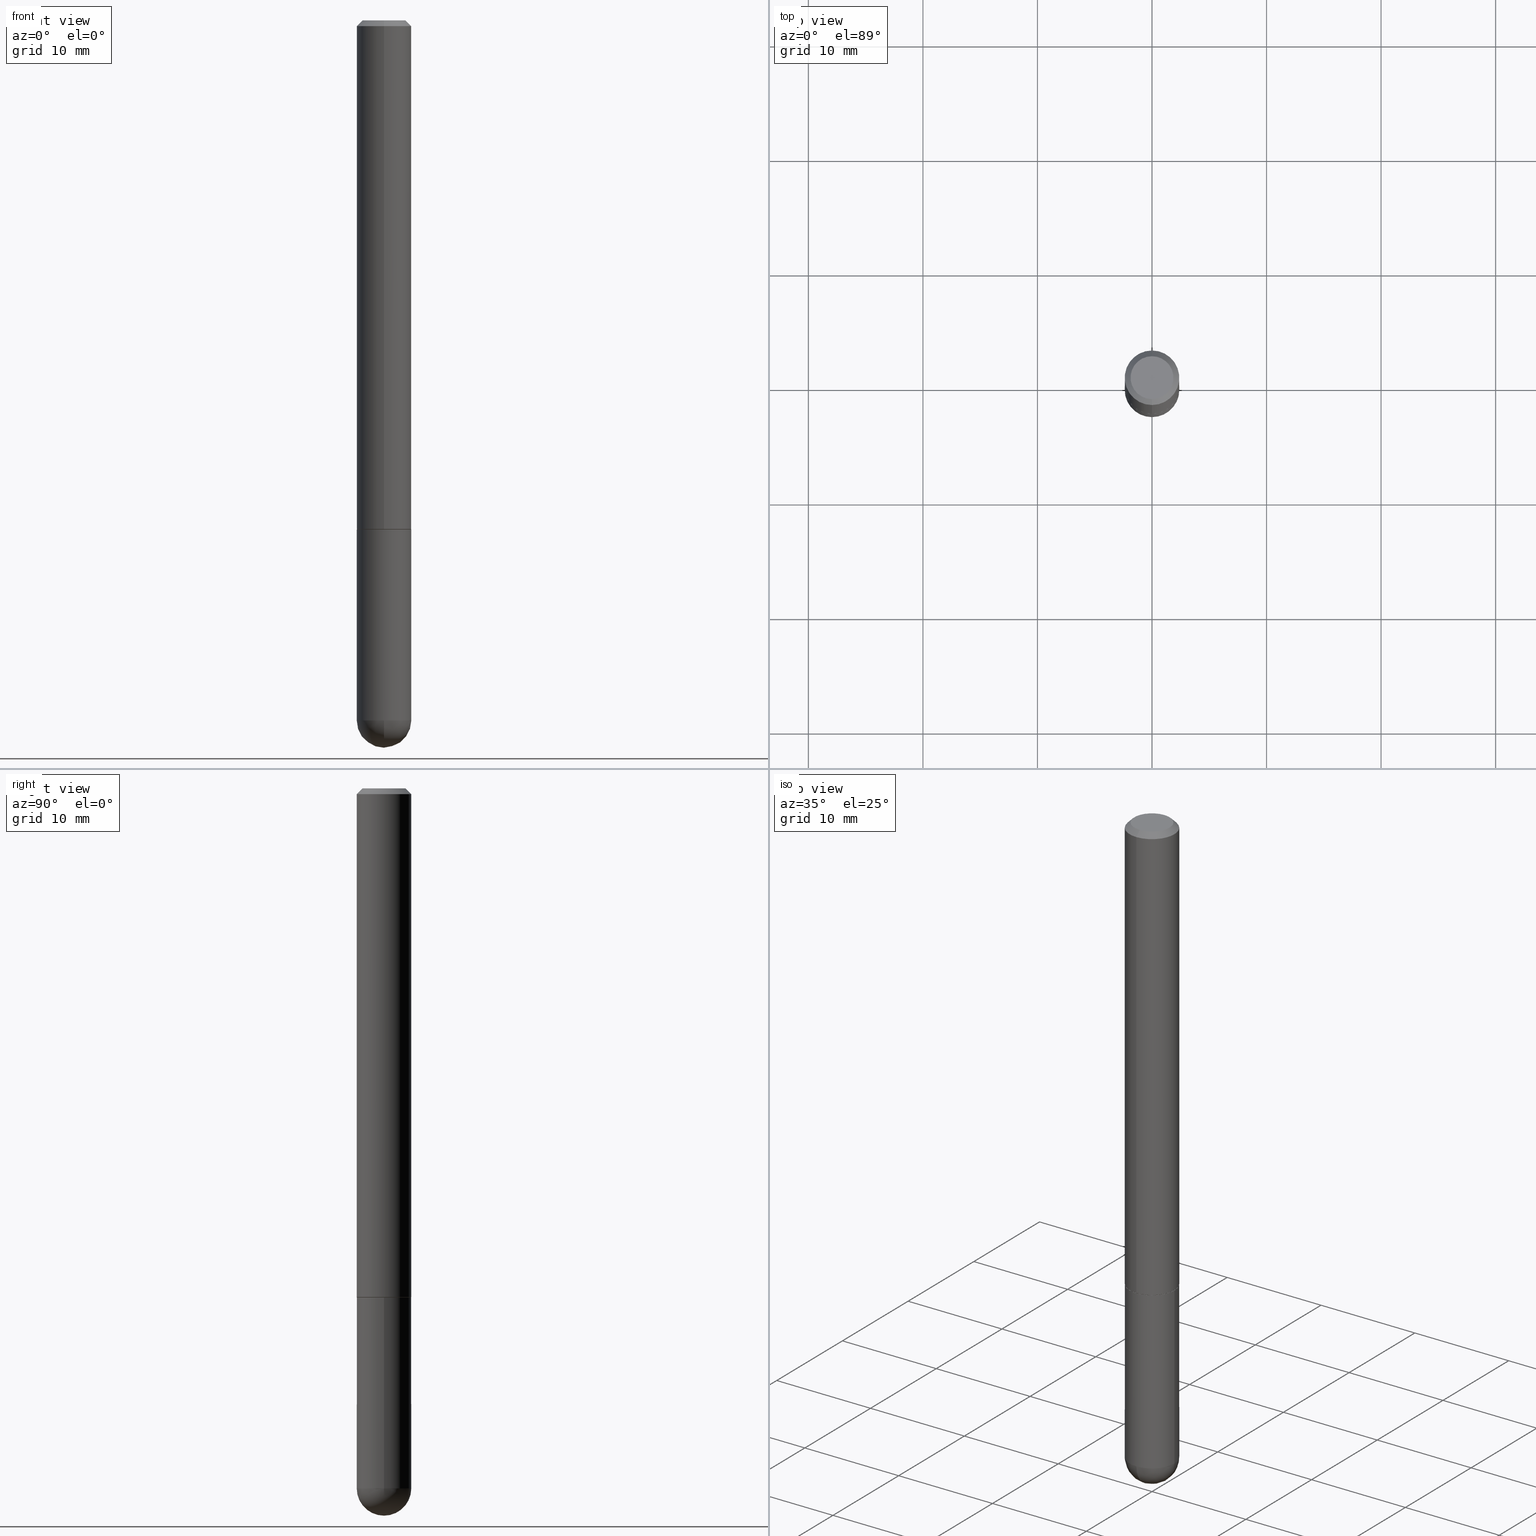
[diagram: canonical four-view strip — front | top / right | iso, engineering-drawing reading convention]
A machine part, canonical four-view strip (front | top / right | iso — engineering-drawing reading convention). The complete STEP part file that produces these views, byte-faithful:
ISO-10303-21;
HEADER;
FILE_DESCRIPTION (( 'STEP AP203' ),
    '1' );
FILE_NAME ('33102.STEP',
    '2024-02-21T17:47:03',
    ( '' ),
    ( '' ),
    'SwSTEP 2.0',
    'SolidWorks 2023',
    '' );
FILE_SCHEMA (( 'CONFIG_CONTROL_DESIGN' ));
ENDSEC;

DATA;
#1 = AXIS2_PLACEMENT_3D ( 'NONE', #64, #156, #408 ) ;
#2 = EDGE_CURVE ( 'NONE', #197, #225, #271, .T. ) ;
#3 = CC_DESIGN_PERSON_AND_ORGANIZATION_ASSIGNMENT ( #19, #141, ( #143 ) ) ;
#4 = CYLINDRICAL_SURFACE ( 'NONE', #395, 0.09375000000000006939 ) ;
#5 = FACE_OUTER_BOUND ( 'NONE', #317, .T. ) ;
#6 = DIRECTION ( 'NONE',  ( 1.000000000000000000, -6.982962677686263555E-15, 0.000000000000000000 ) ) ;
#7 = CARTESIAN_POINT ( 'NONE',  ( 5.553289536969099810E-29, -8.875559339731369515E-15, -2.406250000000000000 ) ) ;
#8 = ORIENTED_EDGE ( 'NONE', *, *, #166, .T. ) ;
#9 = AXIS2_PLACEMENT_3D ( 'NONE', #267, #375, #340 ) ;
#10 = CYLINDRICAL_SURFACE ( 'NONE', #321, 0.09375000000000002776 ) ;
#11 = EDGE_LOOP ( 'NONE', ( #189, #75, #196, #110, #290 ) ) ;
#12 = FACE_OUTER_BOUND ( 'NONE', #16, .T. ) ;
#13 = AXIS2_PLACEMENT_3D ( 'NONE', #186, #236, #369 ) ;
#14 = PRODUCT_DEFINITION_SHAPE ( 'NONE', 'NONE',  #102 ) ;
#15 = PRODUCT_DEFINITION_FORMATION_WITH_SPECIFIED_SOURCE ( 'ANY', '', #143, .NOT_KNOWN. ) ;
#16 = EDGE_LOOP ( 'NONE', ( #232, #394, #356, #293 ) ) ;
#17 = EDGE_CURVE ( 'NONE', #48, #322, #178, .T. ) ;
#18 = DIMENSIONAL_EXPONENTS ( 1.000000000000000000, 0.000000000000000000, 0.000000000000000000, 0.000000000000000000, 0.000000000000000000, 0.000000000000000000, 0.000000000000000000 ) ;
#19 = PERSON_AND_ORGANIZATION ( #284, #292 ) ;
#20 = PERSON_AND_ORGANIZATION_ROLE ( 'creator' ) ;
#21 = AXIS2_PLACEMENT_3D ( 'NONE', #83, #183, #333 ) ;
#22 = APPROVAL_DATE_TIME ( #396, #288 ) ;
#23 = DIRECTION ( 'NONE',  ( -2.433097056190871662E-29, 3.509198388991212762E-15, 1.000000000000000000 ) ) ;
#24 = DIRECTION ( 'NONE',  ( -2.433097056190871662E-29, 3.509198388991212762E-15, 1.000000000000000000 ) ) ;
#25 =( NAMED_UNIT ( * ) SI_UNIT ( $, .STERADIAN. ) SOLID_ANGLE_UNIT ( ) );
#26 = APPROVAL_STATUS ( 'not_yet_approved' ) ;
#27 = CARTESIAN_POINT ( 'NONE',  ( 0.000000000000000000, 0.000000000000000000, 0.000000000000000000 ) ) ;
#28 = CC_DESIGN_SECURITY_CLASSIFICATION ( #170, ( #15 ) ) ;
#29 = ADVANCED_FACE ( 'NONE', ( #115 ), #213, .F. ) ;
#30 = CARTESIAN_POINT ( 'NONE',  ( 0.09374999999999998612, -6.764745094008592175E-15, -1.750000000000000222 ) ) ;
#31 = FACE_OUTER_BOUND ( 'NONE', #42, .T. ) ;
#32 = LINE ( 'NONE', #303, #354 ) ;
#33 = FACE_OUTER_BOUND ( 'NONE', #41, .T. ) ;
#34 = DIRECTION ( 'NONE',  ( -2.433097056190871662E-29, 3.509198388991212762E-15, 1.000000000000000000 ) ) ;
#35 = CC_DESIGN_DATE_AND_TIME_ASSIGNMENT ( #332, #304, ( #170 ) ) ;
#36 = APPROVAL_PERSON_ORGANIZATION ( #56, #288, #62 ) ;
#37 = CARTESIAN_POINT ( 'NONE',  ( -5.745667073133644707E-16, -0.07374999999999978795, 3.753598508692322501E-16 ) ) ;
#38 = DIRECTION ( 'NONE',  ( -2.433097056190871662E-29, 3.509198388991212762E-15, 1.000000000000000000 ) ) ;
#39 = ORIENTED_EDGE ( 'NONE', *, *, #76, .F. ) ;
#40 = FACE_OUTER_BOUND ( 'NONE', #229, .T. ) ;
#41 = EDGE_LOOP ( 'NONE', ( #216, #368, #330, #139 ) ) ;
#42 = EDGE_LOOP ( 'NONE', ( #136, #8 ) ) ;
#43 = EDGE_CURVE ( 'NONE', #289, #254, #205, .T. ) ;
#44 = CLOSED_SHELL ( 'NONE', ( #104, #318, #331, #305, #249, #171, #46, #209 ) ) ;
#45 = AXIS2_PLACEMENT_3D ( 'NONE', #370, #177, #346 ) ;
#46 = ADVANCED_FACE ( 'NONE', ( #377 ), #67, .F. ) ;
#47 = EDGE_LOOP ( 'NONE', ( #227, #124 ) ) ;
#48 = VERTEX_POINT ( 'NONE', #200 ) ;
#49 = LOCAL_TIME ( 12, 47, 3.000000000000000000, #242 ) ;
#50 = ORIENTED_EDGE ( 'NONE', *, *, #43, .T. ) ;
#51 = CALENDAR_DATE ( 2024, 21, 2 ) ;
#52 = CYLINDRICAL_SURFACE ( 'NONE', #347, 0.09375000000000002776 ) ;
#53 = AXIS2_PLACEMENT_3D ( 'NONE', #310, #90, #269 ) ;
#54 = CARTESIAN_POINT ( 'NONE',  ( 5.884409314882984936E-29, -8.401376971591317641E-15, -2.406249999999999556 ) ) ;
#55 = AXIS2_PLACEMENT_3D ( 'NONE', #70, #163, #128 ) ;
#56 = PERSON_AND_ORGANIZATION ( #284, #292 ) ;
#57 =( CONVERSION_BASED_UNIT ( 'INCH', #306 ) LENGTH_UNIT ( ) NAMED_UNIT ( #18 ) );
#58 = CALENDAR_DATE ( 2024, 21, 2 ) ;
#59 = CARTESIAN_POINT ( 'NONE',  ( 0.000000000000000000, 0.000000000000000000, 0.000000000000000000 ) ) ;
#60 = FACE_OUTER_BOUND ( 'NONE', #388, .T. ) ;
#61 = EDGE_CURVE ( 'NONE', #48, #360, #403, .T. ) ;
#62 = APPROVAL_ROLE ( '' ) ;
#63 = SHAPE_DEFINITION_REPRESENTATION ( #14, #204 ) ;
#64 = CARTESIAN_POINT ( 'NONE',  ( 4.279570410823989044E-29, -6.110092342975505460E-15, -1.750000000000000222 ) ) ;
#65 = CARTESIAN_POINT ( 'NONE',  ( 4.255486751277835157E-29, -6.137587982345631334E-15, -1.749000000000000110 ) ) ;
#66 = VECTOR ( 'NONE', #285, 39.37007874015748143 ) ;
#67 = PLANE ( 'NONE',  #105 ) ;
#68 = DIRECTION ( 'NONE',  ( 1.000000000000000000, -6.982962677686265922E-15, 4.883557194083112340E-29 ) ) ;
#69 = ORIENTED_EDGE ( 'NONE', *, *, #101, .F. ) ;
#70 = CARTESIAN_POINT ( 'NONE',  ( 4.866194112381761121E-31, -7.018396777982450767E-17, -0.02000000000000007327 ) ) ;
#71 = AXIS2_PLACEMENT_3D ( 'NONE', #54, #118, #299 ) ;
#72 = AXIS2_PLACEMENT_3D ( 'NONE', #349, #38, #164 ) ;
#73 = DIRECTION ( 'NONE',  ( -2.433097056190871382E-29, 3.509198388991212762E-15, 1.000000000000000000 ) ) ;
#74 = ORIENTED_EDGE ( 'NONE', *, *, #43, .F. ) ;
#75 = ORIENTED_EDGE ( 'NONE', *, *, #111, .T. ) ;
#76 = EDGE_CURVE ( 'NONE', #283, #254, #393, .T. ) ;
#77 = CC_DESIGN_PERSON_AND_ORGANIZATION_ASSIGNMENT ( #371, #179, ( #170 ) ) ;
#78 = ORIENTED_EDGE ( 'NONE', *, *, #250, .F. ) ;
#79 = FACE_OUTER_BOUND ( 'NONE', #264, .T. ) ;
#80 = ORIENTED_EDGE ( 'NONE', *, *, #257, .T. ) ;
#81 = APPROVAL ( #237, 'UNSPECIFIED' ) ;
#82 = VERTEX_POINT ( 'NONE', #402 ) ;
#83 = CARTESIAN_POINT ( 'NONE',  ( 4.257919848334025689E-29, -6.141097180734623615E-15, -1.750000000000000222 ) ) ;
#84 = EDGE_CURVE ( 'NONE', #254, #283, #161, .T. ) ;
#85 = CARTESIAN_POINT ( 'NONE',  ( 5.786560829529485345E-29, -9.197145183376910845E-15, -2.500000000000000000 ) ) ;
#86 = DIRECTION ( 'NONE',  ( 0.000000000000000000, 0.000000000000000000, 1.000000000000000000 ) ) ;
#87 = CALENDAR_DATE ( 2024, 21, 2 ) ;
#88 = CARTESIAN_POINT ( 'NONE',  ( 4.257919848334025689E-29, -6.141097180734623615E-15, -1.750000000000000222 ) ) ;
#89 = CARTESIAN_POINT ( 'NONE',  ( 4.257919848334025689E-29, -6.141097180734623615E-15, -1.750000000000000222 ) ) ;
#90 = DIRECTION ( 'NONE',  ( -2.445468806185136597E-29, 3.491481338843145583E-15, 1.000000000000000000 ) ) ;
#91 = DIRECTION ( 'NONE',  ( 5.024295867788404755E-15, 0.7071067811865981989, 0.7071067811864968355 ) ) ;
#92 = VECTOR ( 'NONE', #73, 39.37007874015748143 ) ;
#93 = ORIENTED_EDGE ( 'NONE', *, *, #199, .T. ) ;
#94 = MANIFOLD_SOLID_BREP ( 'Body-Move/Copy2[2]', #44 ) ;
#95 = CARTESIAN_POINT ( 'NONE',  ( -6.546527510330464833E-16, -0.09375000000000635603, -1.748999999999999888 ) ) ;
#96 = MANIFOLD_SOLID_BREP ( 'Body-Move/Copy2[1]', #365 ) ;
#97 = ORIENTED_EDGE ( 'NONE', *, *, #84, .T. ) ;
#98 = AXIS2_PLACEMENT_3D ( 'NONE', #274, #270, #345 ) ;
#99 = VECTOR ( 'NONE', #176, 39.37007874015748143 ) ;
#100 = CONICAL_SURFACE ( 'NONE', #55, 0.09374999999999991673, 0.7853981633974468357 ) ;
#101 = EDGE_CURVE ( 'NONE', #134, #362, #327, .T. ) ;
#102 = PRODUCT_DEFINITION ( 'UNKNOWN', '', #15, #358 ) ;
#103 = ORIENTED_EDGE ( 'NONE', *, *, #302, .F. ) ;
#104 = ADVANCED_FACE ( 'NONE', ( #341 ), #238, .T. ) ;
#105 = AXIS2_PLACEMENT_3D ( 'NONE', #89, #157, #406 ) ;
#106 = VECTOR ( 'NONE', #91, 39.37007874015748143 ) ;
#107 = CC_DESIGN_PERSON_AND_ORGANIZATION_ASSIGNMENT ( #116, #121, ( #102 ) ) ;
#108 = ORIENTED_EDGE ( 'NONE', *, *, #144, .T. ) ;
#109 = EDGE_LOOP ( 'NONE', ( #168, #130 ) ) ;
#110 = ORIENTED_EDGE ( 'NONE', *, *, #185, .T. ) ;
#111 = EDGE_CURVE ( 'NONE', #223, #362, #334, .T. ) ;
#112 = ORIENTED_EDGE ( 'NONE', *, *, #364, .T. ) ;
#113 = DIRECTION ( 'NONE',  ( -1.000000000000000000, 6.982962677686265922E-15, -4.876176775795935793E-29 ) ) ;
#114 = PERSON_AND_ORGANIZATION ( #284, #292 ) ;
#115 = FACE_OUTER_BOUND ( 'NONE', #47, .T. ) ;
#116 = PERSON_AND_ORGANIZATION ( #284, #292 ) ;
#117 = CIRCLE ( 'NONE', #246, 0.09375000000000029143 ) ;
#118 = DIRECTION ( 'NONE',  ( -2.445468806185136597E-29, 3.491481338843145583E-15, 1.000000000000000000 ) ) ;
#119 = CIRCLE ( 'NONE', #231, 0.09375000000000005551 ) ;
#120 = MECHANICAL_CONTEXT ( 'NONE', #357, 'mechanical' ) ;
#121 = PERSON_AND_ORGANIZATION_ROLE ( 'creator' ) ;
#122 = DIRECTION ( 'NONE',  ( 2.433097056190871662E-29, -3.509198388991212762E-15, -1.000000000000000000 ) ) ;
#123 = CARTESIAN_POINT ( 'NONE',  ( 4.279570410823989044E-29, -6.110092342975505460E-15, -1.750000000000000222 ) ) ;
#124 = ORIENTED_EDGE ( 'NONE', *, *, #383, .T. ) ;
#125 = CARTESIAN_POINT ( 'NONE',  ( 5.884409314882984936E-29, -8.401376971591317641E-15, -2.406249999999999556 ) ) ;
#126 = DIRECTION ( 'NONE',  ( -1.000000000000000000, 6.982962677686265133E-15, -4.883557194083112901E-29 ) ) ;
#127 = CIRCLE ( 'NONE', #262, 0.09375000000000005551 ) ;
#128 = DIRECTION ( 'NONE',  ( 6.982962677686266711E-15, 1.000000000000000000, -3.505871591869140854E-15 ) ) ;
#129 = CARTESIAN_POINT ( 'NONE',  ( -2.835932032611605891E-45, 4.090197756315282749E-31, 1.165564696811310667E-16 ) ) ;
#130 = ORIENTED_EDGE ( 'NONE', *, *, #323, .F. ) ;
#131 = CARTESIAN_POINT ( 'NONE',  ( -6.431716872910799993E-16, -0.09374999999999998612, -0.01999999999999974368 ) ) ;
#132 = CARTESIAN_POINT ( 'NONE',  ( 5.884409314882984936E-29, -8.401376971591317641E-15, -2.406249999999999556 ) ) ;
#133 = CARTESIAN_POINT ( 'NONE',  ( 4.257919848334025689E-29, -6.141097180734623615E-15, -1.750000000000000222 ) ) ;
#134 = VERTEX_POINT ( 'NONE', #85 ) ;
#135 = VECTOR ( 'NONE', #278, 39.37007874015748143 ) ;
#136 = ORIENTED_EDGE ( 'NONE', *, *, #61, .T. ) ;
#137 = ADVANCED_FACE ( 'NONE', ( #60 ), #181, .T. ) ;
#138 = CARTESIAN_POINT ( 'NONE',  ( -0.09374999999999998612, -6.589600842508317626E-15, -1.750000000000000222 ) ) ;
#139 = ORIENTED_EDGE ( 'NONE', *, *, #17, .F. ) ;
#140 = CIRCLE ( 'NONE', #1, 0.09374999999999998612 ) ;
#141 = PERSON_AND_ORGANIZATION_ROLE ( 'design_owner' ) ;
#142 = ORIENTED_EDGE ( 'NONE', *, *, #2, .T. ) ;
#143 = PRODUCT ( '33102', '33102', '', ( #120 ) ) ;
#144 = EDGE_CURVE ( 'NONE', #134, #225, #117, .T. ) ;
#145 = CIRCLE ( 'NONE', #279, 0.09275000000000002687 ) ;
#146 = APPROVAL_STATUS ( 'not_yet_approved' ) ;
#147 = APPROVAL_ROLE ( '' ) ;
#148 =( NAMED_UNIT ( * ) PLANE_ANGLE_UNIT ( ) SI_UNIT ( $, .RADIAN. ) );
#149 = CC_DESIGN_DATE_AND_TIME_ASSIGNMENT ( #235, #202, ( #102 ) ) ;
#150 = CARTESIAN_POINT ( 'NONE',  ( -2.835932032611605891E-45, 4.090197756315282749E-31, 1.165564696811310667E-16 ) ) ;
#151 = APPROVAL_ROLE ( '' ) ;
#152 = AXIS2_PLACEMENT_3D ( 'NONE', #129, #34, #184 ) ;
#153 = DIRECTION ( 'NONE',  ( 1.000000000000000000, -6.982962677686265922E-15, 4.876176775795935793E-29 ) ) ;
#154 = CARTESIAN_POINT ( 'NONE',  ( 6.546527510331302012E-16, 0.09374999999999387990, -1.750000000000000444 ) ) ;
#155 = CIRCLE ( 'NONE', #374, 0.09374999999999991673 ) ;
#156 = DIRECTION ( 'NONE',  ( -2.445468806185136597E-29, 3.491481338843145583E-15, 1.000000000000000000 ) ) ;
#157 = DIRECTION ( 'NONE',  ( -2.433097056190871382E-29, 3.509198388991212762E-15, 1.000000000000000000 ) ) ;
#158 = DIRECTION ( 'NONE',  ( 2.433097056190871382E-29, -3.509198388991212762E-15, -1.000000000000000000 ) ) ;
#159 = DIRECTION ( 'NONE',  ( -6.982962677686265133E-15, -1.000000000000000000, 2.945388672414299103E-15 ) ) ;
#160 = CARTESIAN_POINT ( 'NONE',  ( 0.09375000000000002776, -6.546527510330876027E-16, 4.571415727308691207E-30 ) ) ;
#161 = CIRCLE ( 'NONE', #211, 0.09375000000000023592 ) ;
#162 =( GEOMETRIC_REPRESENTATION_CONTEXT ( 3 ) GLOBAL_UNCERTAINTY_ASSIGNED_CONTEXT ( ( #259 ) ) GLOBAL_UNIT_ASSIGNED_CONTEXT ( ( #57, #148, #25 ) ) REPRESENTATION_CONTEXT ( 'NONE', 'WORKASPACE' ) );
#163 = DIRECTION ( 'NONE',  ( 2.433097056190871662E-29, -3.509198388991212762E-15, -1.000000000000000000 ) ) ;
#164 = DIRECTION ( 'NONE',  ( -6.982962677686266711E-15, -1.000000000000000000, 3.509198388991212762E-15 ) ) ;
#165 = EDGE_LOOP ( 'NONE', ( #97, #194, #385, #319 ) ) ;
#166 = EDGE_CURVE ( 'NONE', #360, #48, #220, .T. ) ;
#167 = ORIENTED_EDGE ( 'NONE', *, *, #382, .F. ) ;
#168 = ORIENTED_EDGE ( 'NONE', *, *, #364, .F. ) ;
#169 = AXIS2_PLACEMENT_3D ( 'NONE', #133, #187, #380 ) ;
#170 = SECURITY_CLASSIFICATION ( '', '', #294 ) ;
#171 = ADVANCED_FACE ( 'NONE', ( #40 ), #192, .T. ) ;
#172 = ORIENTED_EDGE ( 'NONE', *, *, #185, .F. ) ;
#173 = COORDINATED_UNIVERSAL_TIME_OFFSET ( 5, 0, .BEHIND. ) ;
#174 = AXIS2_PLACEMENT_3D ( 'NONE', #188, #312, #159 ) ;
#175 = LINE ( 'NONE', #298, #66 ) ;
#176 = DIRECTION ( 'NONE',  ( -4.937700262164884886E-15, -0.7071067811865933139, 0.7071067811865017205 ) ) ;
#177 = DIRECTION ( 'NONE',  ( -2.433097056190871662E-29, 3.509198388991212762E-15, 1.000000000000000000 ) ) ;
#178 = LINE ( 'NONE', #401, #230 ) ;
#179 = PERSON_AND_ORGANIZATION_ROLE ( 'classification_officer' ) ;
#180 = CALENDAR_DATE ( 2024, 21, 2 ) ;
#181 = SPHERICAL_SURFACE ( 'NONE', #320, 0.09375000000000029143 ) ;
#182 = FACE_OUTER_BOUND ( 'NONE', #363, .T. ) ;
#183 = DIRECTION ( 'NONE',  ( -2.433097056190871662E-29, 3.509198388991212762E-15, 1.000000000000000000 ) ) ;
#184 = DIRECTION ( 'NONE',  ( -6.982962677686266711E-15, -1.000000000000000000, 3.509198388991212762E-15 ) ) ;
#185 = EDGE_CURVE ( 'NONE', #197, #352, #215, .T. ) ;
#186 = CARTESIAN_POINT ( 'NONE',  ( 5.553289536969099810E-29, -8.875559339731369515E-15, -2.406250000000000000 ) ) ;
#187 = DIRECTION ( 'NONE',  ( -2.433097056190871662E-29, 3.509198388991212762E-15, 1.000000000000000000 ) ) ;
#188 = CARTESIAN_POINT ( 'NONE',  ( 4.257919848334025689E-29, -6.141097180734623615E-15, -1.750000000000000222 ) ) ;
#189 = ORIENTED_EDGE ( 'NONE', *, *, #392, .F. ) ;
#190 = CARTESIAN_POINT ( 'NONE',  ( -6.431716872910799993E-16, -0.09374999999999998612, -0.01999999999999974368 ) ) ;
#191 = AXIS2_PLACEMENT_3D ( 'NONE', #154, #272, #113 ) ;
#192 = CONICAL_SURFACE ( 'NONE', #169, 0.09275000000000002687, 0.7853981633975165577 ) ;
#193 = ORIENTED_EDGE ( 'NONE', *, *, #399, .T. ) ;
#194 = ORIENTED_EDGE ( 'NONE', *, *, #302, .T. ) ;
#195 = AXIS2_PLACEMENT_3D ( 'NONE', #376, #86, #206 ) ;
#196 = ORIENTED_EDGE ( 'NONE', *, *, #250, .T. ) ;
#197 = VERTEX_POINT ( 'NONE', #316 ) ;
#198 = APPROVAL_PERSON_ORGANIZATION ( #296, #81, #147 ) ;
#199 = EDGE_CURVE ( 'NONE', #82, #283, #311, .T. ) ;
#200 = CARTESIAN_POINT ( 'NONE',  ( 5.848231242562241073E-16, 0.07374999999999978795, -1.422469115069701659E-16 ) ) ;
#201 =( LENGTH_UNIT ( ) NAMED_UNIT ( * ) SI_UNIT ( $, .METRE. ) );
#202 = DATE_TIME_ROLE ( 'creation_date' ) ;
#203 = PERSON_AND_ORGANIZATION_ROLE ( 'design_supplier' ) ;
#204 = ADVANCED_BREP_SHAPE_REPRESENTATION ( '33102', ( #96, #94, #195 ), #162 ) ;
#205 = LINE ( 'NONE', #301, #99 ) ;
#206 = DIRECTION ( 'NONE',  ( 1.000000000000000000, 0.000000000000000000, 0.000000000000000000 ) ) ;
#207 = DATE_AND_TIME ( #180, #49 ) ;
#208 = DIRECTION ( 'NONE',  ( -2.433097056190871662E-29, 3.509198388991212762E-15, 1.000000000000000000 ) ) ;
#209 = ADVANCED_FACE ( 'NONE', ( #31 ), #280, .F. ) ;
#210 = DIRECTION ( 'NONE',  ( -2.445468806185136877E-29, 3.491481338843145188E-15, 1.000000000000000000 ) ) ;
#211 = AXIS2_PLACEMENT_3D ( 'NONE', #65, #348, #234 ) ;
#212 = CIRCLE ( 'NONE', #45, 0.09374999999999991673 ) ;
#213 = PLANE ( 'NONE',  #191 ) ;
#214 = CYLINDRICAL_SURFACE ( 'NONE', #72, 0.09375000000000006939 ) ;
#215 = LINE ( 'NONE', #160, #297 ) ;
#216 = ORIENTED_EDGE ( 'NONE', *, *, #166, .F. ) ;
#217 = CARTESIAN_POINT ( 'NONE',  ( -0.09375000000000005551, -6.589600842508317626E-15, -2.406249999999999556 ) ) ;
#218 = FACE_OUTER_BOUND ( 'NONE', #165, .T. ) ;
#219 = LINE ( 'NONE', #355, #92 ) ;
#220 = CIRCLE ( 'NONE', #152, 0.07374999999999978795 ) ;
#221 = APPROVAL_PERSON_ORGANIZATION ( #307, #410, #151 ) ;
#222 = ORIENTED_EDGE ( 'NONE', *, *, #76, .T. ) ;
#223 = VERTEX_POINT ( 'NONE', #217 ) ;
#224 = CONICAL_SURFACE ( 'NONE', #315, 0.09374999999999991673, 0.7853981633974468357 ) ;
#225 = VERTEX_POINT ( 'NONE', #252 ) ;
#226 = CARTESIAN_POINT ( 'NONE',  ( 6.661338147751165054E-16, 0.09374999999999410194, -1.749000000000000332 ) ) ;
#227 = ORIENTED_EDGE ( 'NONE', *, *, #382, .T. ) ;
#228 = EDGE_CURVE ( 'NONE', #225, #223, #119, .T. ) ;
#229 = EDGE_LOOP ( 'NONE', ( #286, #260, #50, #39 ) ) ;
#230 = VECTOR ( 'NONE', #398, 39.37007874015748143 ) ;
#231 = AXIS2_PLACEMENT_3D ( 'NONE', #125, #381, #353 ) ;
#232 = ORIENTED_EDGE ( 'NONE', *, *, #144, .F. ) ;
#233 = DIRECTION ( 'NONE',  ( -2.445468806185136597E-29, 3.491481338843145583E-15, 1.000000000000000000 ) ) ;
#234 = DIRECTION ( 'NONE',  ( -6.982962677686265922E-15, -1.000000000000000000, 2.913971193241873272E-15 ) ) ;
#235 = DATE_AND_TIME ( #51, #367 ) ;
#236 = DIRECTION ( 'NONE',  ( -1.000000000000000000, 7.105427357601001070E-15, -4.926315508542082329E-29 ) ) ;
#237 = APPROVAL_STATUS ( 'not_yet_approved' ) ;
#238 = CONICAL_SURFACE ( 'NONE', #21, 0.09275000000000002687, 0.7853981633975165577 ) ;
#239 = CC_DESIGN_APPROVAL ( #81, ( #15 ) ) ;
#240 = SPHERICAL_SURFACE ( 'NONE', #9, 0.09375000000000029143 ) ;
#241 = APPLICATION_PROTOCOL_DEFINITION ( 'international standard', 'config_control_design', 1994, #357 ) ;
#242 = COORDINATED_UNIVERSAL_TIME_OFFSET ( 5, 0, .BEHIND. ) ;
#243 = DIRECTION ( 'NONE',  ( 6.982962677686266711E-15, 1.000000000000000000, -3.505871591869140854E-15 ) ) ;
#244 = DIRECTION ( 'NONE',  ( -2.445468806185136597E-29, 3.491481338843145583E-15, 1.000000000000000000 ) ) ;
#245 = CARTESIAN_POINT ( 'NONE',  ( 4.866194112381761121E-31, -7.018396777982450767E-17, -0.02000000000000007327 ) ) ;
#246 = AXIS2_PLACEMENT_3D ( 'NONE', #7, #68, #248 ) ;
#247 = LOCAL_TIME ( 12, 47, 3.000000000000000000, #372 ) ;
#248 = DIRECTION ( 'NONE',  ( 6.982962677686265922E-15, 1.000000000000000000, 0.000000000000000000 ) ) ;
#249 = ADVANCED_FACE ( 'NONE', ( #5 ), #214, .T. ) ;
#250 = EDGE_CURVE ( 'NONE', #362, #197, #127, .T. ) ;
#251 = CARTESIAN_POINT ( 'NONE',  ( 4.866194112381761121E-31, -7.018396777982450767E-17, -0.02000000000000007327 ) ) ;
#252 = CARTESIAN_POINT ( 'NONE',  ( 6.546527510331458798E-16, 0.09374999999999153455, -2.406250000000000000 ) ) ;
#253 = DIRECTION ( 'NONE',  ( -2.445468806185136597E-29, 3.491481338843145583E-15, 1.000000000000000000 ) ) ;
#254 = VERTEX_POINT ( 'NONE', #95 ) ;
#255 = AXIS2_PLACEMENT_3D ( 'NONE', #150, #24, #378 ) ;
#256 = ORIENTED_EDGE ( 'NONE', *, *, #228, .T. ) ;
#257 = EDGE_CURVE ( 'NONE', #254, #324, #219, .T. ) ;
#258 = EDGE_LOOP ( 'NONE', ( #112, #93, #261, #74 ) ) ;
#259 = UNCERTAINTY_MEASURE_WITH_UNIT (LENGTH_MEASURE( 1.000000000000000082E-05 ), #57, 'distance_accuracy_value', 'NONE');
#260 = ORIENTED_EDGE ( 'NONE', *, *, #323, .T. ) ;
#261 = ORIENTED_EDGE ( 'NONE', *, *, #84, .F. ) ;
#262 = AXIS2_PLACEMENT_3D ( 'NONE', #132, #253, #384 ) ;
#263 = VERTEX_POINT ( 'NONE', #138 ) ;
#264 = EDGE_LOOP ( 'NONE', ( #256, #359, #167, #172, #142 ) ) ;
#265 = APPLICATION_PROTOCOL_DEFINITION ( 'international standard', 'config_control_design', 1994, #391 ) ;
#266 = DATE_AND_TIME ( #87, #386 ) ;
#267 = CARTESIAN_POINT ( 'NONE',  ( 5.553289536969099810E-29, -8.875559339731369515E-15, -2.406250000000000000 ) ) ;
#268 = APPROVAL_DATE_TIME ( #266, #81 ) ;
#269 = DIRECTION ( 'NONE',  ( 1.000000000000000000, -6.982962677686258033E-15, 0.000000000000000000 ) ) ;
#270 = DIRECTION ( 'NONE',  ( -2.433097056190871662E-29, 3.509198388991212762E-15, 1.000000000000000000 ) ) ;
#271 = CIRCLE ( 'NONE', #53, 0.09375000000000005551 ) ;
#272 = DIRECTION ( 'NONE',  ( 2.438088387897960049E-29, -3.491481338843145188E-15, -1.000000000000000000 ) ) ;
#273 = LINE ( 'NONE', #190, #135 ) ;
#274 = CARTESIAN_POINT ( 'NONE',  ( 4.255486751277835157E-29, -6.137587982345631334E-15, -1.749000000000000110 ) ) ;
#275 = CARTESIAN_POINT ( 'NONE',  ( 6.590283874175355146E-16, 0.09274999999999387901, -1.750000000000000444 ) ) ;
#276 = DIRECTION ( 'NONE',  ( -2.433097056190871662E-29, 3.509198388991212762E-15, 1.000000000000000000 ) ) ;
#277 = ADVANCED_FACE ( 'NONE', ( #12 ), #240, .T. ) ;
#278 = DIRECTION ( 'NONE',  ( -4.851104656540956386E-15, -0.7071067811865489050, -0.7071067811865461294 ) ) ;
#279 = AXIS2_PLACEMENT_3D ( 'NONE', #88, #208, #344 ) ;
#280 = PLANE ( 'NONE',  #328 ) ;
#281 = CARTESIAN_POINT ( 'NONE',  ( -6.661338147750378165E-16, -0.09375000000000881240, -2.406249999999999556 ) ) ;
#282 = DIRECTION ( 'NONE',  ( -2.445468806185136877E-29, 3.491481338843145188E-15, 1.000000000000000000 ) ) ;
#283 = VERTEX_POINT ( 'NONE', #226 ) ;
#284 = PERSON ( 'UNSPECIFIED', 'UNSPECIFIED', 'UNSPECIFIED', ('UNSPECIFIED'), ('UNSPECIFIED'), ('UNSPECIFIED') ) ;
#285 = DIRECTION ( 'NONE',  ( -2.433097056190871382E-29, 3.509198388991212762E-15, 1.000000000000000000 ) ) ;
#286 = ORIENTED_EDGE ( 'NONE', *, *, #199, .F. ) ;
#287 = ADVANCED_FACE ( 'NONE', ( #397 ), #52, .T. ) ;
#288 = APPROVAL ( #146, 'UNSPECIFIED' ) ;
#289 = VERTEX_POINT ( 'NONE', #405 ) ;
#290 = ORIENTED_EDGE ( 'NONE', *, *, #383, .F. ) ;
#291 = ORIENTED_EDGE ( 'NONE', *, *, #61, .F. ) ;
#292 = ORGANIZATION ( 'UNSPECIFIED', 'UNSPECIFIED', '' ) ;
#293 = ORIENTED_EDGE ( 'NONE', *, *, #228, .F. ) ;
#294 = SECURITY_CLASSIFICATION_LEVEL ( 'unclassified' ) ;
#295 = ORIENTED_EDGE ( 'NONE', *, *, #2, .F. ) ;
#296 = PERSON_AND_ORGANIZATION ( #284, #292 ) ;
#297 = VECTOR ( 'NONE', #282, 39.37007874015748143 ) ;
#298 = CARTESIAN_POINT ( 'NONE',  ( 6.661338147750943187E-16, 0.09375000000000006939, -3.289873489679264552E-16 ) ) ;
#299 = DIRECTION ( 'NONE',  ( 1.000000000000000000, -6.982962677686258033E-15, 0.000000000000000000 ) ) ;
#300 = COORDINATED_UNIVERSAL_TIME_OFFSET ( 5, 0, .BEHIND. ) ;
#301 = CARTESIAN_POINT ( 'NONE',  ( -6.476697883553586941E-16, -0.09275000000000617473, -1.750000000000000000 ) ) ;
#302 = EDGE_CURVE ( 'NONE', #283, #322, #175, .T. ) ;
#303 = CARTESIAN_POINT ( 'NONE',  ( -0.09375000000000002776, 6.661338147750941215E-16, -4.611501647113975397E-30 ) ) ;
#304 = DATE_TIME_ROLE ( 'classification_date' ) ;
#305 = ADVANCED_FACE ( 'NONE', ( #182 ), #100, .T. ) ;
#306 = LENGTH_MEASURE_WITH_UNIT ( LENGTH_MEASURE( 0.02539999999999999897 ), #201 );
#307 = PERSON_AND_ORGANIZATION ( #284, #292 ) ;
#308 = CC_DESIGN_APPROVAL ( #288, ( #102 ) ) ;
#309 = CARTESIAN_POINT ( 'NONE',  ( 0.000000000000000000, 0.000000000000000000, 0.000000000000000000 ) ) ;
#310 = CARTESIAN_POINT ( 'NONE',  ( 5.884409314882984936E-29, -8.401376971591317641E-15, -2.406249999999999556 ) ) ;
#311 = LINE ( 'NONE', #275, #106 ) ;
#312 = DIRECTION ( 'NONE',  ( -2.433097056190871662E-29, 3.509198388991212762E-15, 1.000000000000000000 ) ) ;
#313 = CARTESIAN_POINT ( 'NONE',  ( 5.553289536969099810E-29, -8.875559339731369515E-15, -2.406250000000000000 ) ) ;
#314 = ORIENTED_EDGE ( 'NONE', *, *, #337, .F. ) ;
#315 = AXIS2_PLACEMENT_3D ( 'NONE', #251, #122, #243 ) ;
#316 = CARTESIAN_POINT ( 'NONE',  ( 0.09375000000000005551, -7.910387408316499054E-15, -2.406249999999999556 ) ) ;
#317 = EDGE_LOOP ( 'NONE', ( #103, #222, #80, #366 ) ) ;
#318 = ADVANCED_FACE ( 'NONE', ( #218 ), #4, .T. ) ;
#319 = ORIENTED_EDGE ( 'NONE', *, *, #257, .F. ) ;
#320 = AXIS2_PLACEMENT_3D ( 'NONE', #313, #126, #387 ) ;
#321 = AXIS2_PLACEMENT_3D ( 'NONE', #59, #342, #335 ) ;
#322 = VERTEX_POINT ( 'NONE', #411 ) ;
#323 = EDGE_CURVE ( 'NONE', #82, #289, #361, .T. ) ;
#324 = VERTEX_POINT ( 'NONE', #131 ) ;
#325 = PRODUCT_RELATED_PRODUCT_CATEGORY ( 'detail', '', ( #143 ) ) ;
#326 = ORIENTED_EDGE ( 'NONE', *, *, #17, .T. ) ;
#327 = CIRCLE ( 'NONE', #13, 0.09375000000000029143 ) ;
#328 = AXIS2_PLACEMENT_3D ( 'NONE', #409, #158, #412 ) ;
#329 = CC_DESIGN_APPROVAL ( #410, ( #170 ) ) ;
#330 = ORIENTED_EDGE ( 'NONE', *, *, #407, .T. ) ;
#331 = ADVANCED_FACE ( 'NONE', ( #33 ), #224, .T. ) ;
#332 = DATE_AND_TIME ( #339, #404 ) ;
#333 = DIRECTION ( 'NONE',  ( -6.982962677686265133E-15, -1.000000000000000000, 2.945388672414299103E-15 ) ) ;
#334 = CIRCLE ( 'NONE', #71, 0.09375000000000005551 ) ;
#335 = DIRECTION ( 'NONE',  ( 1.000000000000000000, -6.982962677686265922E-15, 4.876176775795935793E-29 ) ) ;
#336 = AXIS2_PLACEMENT_3D ( 'NONE', #123, #244, #6 ) ;
#337 = EDGE_CURVE ( 'NONE', #360, #324, #273, .T. ) ;
#338 = CC_DESIGN_PERSON_AND_ORGANIZATION_ASSIGNMENT ( #400, #20, ( #15 ) ) ;
#339 = CALENDAR_DATE ( 2024, 21, 2 ) ;
#340 = DIRECTION ( 'NONE',  ( 6.982962677686265133E-15, 1.000000000000000000, -2.913971193241871694E-15 ) ) ;
#341 = FACE_OUTER_BOUND ( 'NONE', #258, .T. ) ;
#342 = DIRECTION ( 'NONE',  ( -2.445468806185136597E-29, 3.491481338843145583E-15, 1.000000000000000000 ) ) ;
#343 = APPROVAL_DATE_TIME ( #207, #410 ) ;
#344 = DIRECTION ( 'NONE',  ( -6.982962677686265133E-15, -1.000000000000000000, 2.945388672414299103E-15 ) ) ;
#345 = DIRECTION ( 'NONE',  ( -6.982962677686265922E-15, -1.000000000000000000, 2.913971193241873272E-15 ) ) ;
#346 = DIRECTION ( 'NONE',  ( -6.982962677686266711E-15, -1.000000000000000000, 3.505871591869140854E-15 ) ) ;
#347 = AXIS2_PLACEMENT_3D ( 'NONE', #27, #233, #153 ) ;
#348 = DIRECTION ( 'NONE',  ( -2.433097056190871662E-29, 3.509198388991212762E-15, 1.000000000000000000 ) ) ;
#349 = CARTESIAN_POINT ( 'NONE',  ( 0.000000000000000000, 0.000000000000000000, 0.000000000000000000 ) ) ;
#350 = CC_DESIGN_PERSON_AND_ORGANIZATION_ASSIGNMENT ( #114, #203, ( #15 ) ) ;
#351 = DIRECTION ( 'NONE',  ( -6.982962677686266711E-15, -1.000000000000000000, 3.509198388991212762E-15 ) ) ;
#352 = VERTEX_POINT ( 'NONE', #30 ) ;
#353 = DIRECTION ( 'NONE',  ( 1.000000000000000000, -6.982962677686258033E-15, 0.000000000000000000 ) ) ;
#354 = VECTOR ( 'NONE', #210, 39.37007874015748143 ) ;
#355 = CARTESIAN_POINT ( 'NONE',  ( -6.546527510330879972E-16, -0.09375000000000006939, 3.289873489679264552E-16 ) ) ;
#356 = ORIENTED_EDGE ( 'NONE', *, *, #111, .F. ) ;
#357 = APPLICATION_CONTEXT ( 'configuration controlled 3d designs of mechanical parts and assemblies' ) ;
#358 = DESIGN_CONTEXT ( 'detailed design', #391, 'design' ) ;
#359 = ORIENTED_EDGE ( 'NONE', *, *, #392, .T. ) ;
#360 = VERTEX_POINT ( 'NONE', #37 ) ;
#361 = CIRCLE ( 'NONE', #174, 0.09275000000000002687 ) ;
#362 = VERTEX_POINT ( 'NONE', #281 ) ;
#363 = EDGE_LOOP ( 'NONE', ( #314, #291, #326, #193 ) ) ;
#364 = EDGE_CURVE ( 'NONE', #289, #82, #145, .T. ) ;
#365 = CLOSED_SHELL ( 'NONE', ( #390, #277, #137, #29, #287 ) ) ;
#366 = ORIENTED_EDGE ( 'NONE', *, *, #399, .F. ) ;
#367 = LOCAL_TIME ( 12, 47, 3.000000000000000000, #173 ) ;
#368 = ORIENTED_EDGE ( 'NONE', *, *, #337, .T. ) ;
#369 = DIRECTION ( 'NONE',  ( -7.105427357601001070E-15, -1.000000000000000000, 0.000000000000000000 ) ) ;
#370 = CARTESIAN_POINT ( 'NONE',  ( 4.866194112381761121E-31, -7.018396777982450767E-17, -0.02000000000000007327 ) ) ;
#371 = PERSON_AND_ORGANIZATION ( #284, #292 ) ;
#372 = COORDINATED_UNIVERSAL_TIME_OFFSET ( 5, 0, .BEHIND. ) ;
#373 = COORDINATED_UNIVERSAL_TIME_OFFSET ( 5, 0, .BEHIND. ) ;
#374 = AXIS2_PLACEMENT_3D ( 'NONE', #245, #23, #379 ) ;
#375 = DIRECTION ( 'NONE',  ( -1.000000000000000000, 6.982962677686265133E-15, -4.883557194083112901E-29 ) ) ;
#376 = CARTESIAN_POINT ( 'NONE',  ( 0.000000000000000000, 0.000000000000000000, 0.000000000000000000 ) ) ;
#377 = FACE_OUTER_BOUND ( 'NONE', #109, .T. ) ;
#378 = DIRECTION ( 'NONE',  ( -6.982962677686266711E-15, -1.000000000000000000, 3.509198388991212762E-15 ) ) ;
#379 = DIRECTION ( 'NONE',  ( -6.982962677686266711E-15, -1.000000000000000000, 3.505871591869140854E-15 ) ) ;
#380 = DIRECTION ( 'NONE',  ( -6.982962677686265133E-15, -1.000000000000000000, 2.945388672414299103E-15 ) ) ;
#381 = DIRECTION ( 'NONE',  ( -2.445468806185136597E-29, 3.491481338843145583E-15, 1.000000000000000000 ) ) ;
#382 = EDGE_CURVE ( 'NONE', #352, #263, #140, .T. ) ;
#383 = EDGE_CURVE ( 'NONE', #263, #352, #389, .T. ) ;
#384 = DIRECTION ( 'NONE',  ( 1.000000000000000000, -6.982962677686258033E-15, 0.000000000000000000 ) ) ;
#385 = ORIENTED_EDGE ( 'NONE', *, *, #407, .F. ) ;
#386 = LOCAL_TIME ( 12, 47, 3.000000000000000000, #300 ) ;
#387 = DIRECTION ( 'NONE',  ( 6.982962677686265133E-15, 1.000000000000000000, -2.913971193241871694E-15 ) ) ;
#388 = EDGE_LOOP ( 'NONE', ( #69, #108, #295, #78 ) ) ;
#389 = CIRCLE ( 'NONE', #336, 0.09374999999999998612 ) ;
#390 = ADVANCED_FACE ( 'NONE', ( #79 ), #10, .T. ) ;
#391 = APPLICATION_CONTEXT ( 'configuration controlled 3d designs of mechanical parts and assemblies' ) ;
#392 = EDGE_CURVE ( 'NONE', #223, #263, #32, .T. ) ;
#393 = CIRCLE ( 'NONE', #98, 0.09375000000000023592 ) ;
#394 = ORIENTED_EDGE ( 'NONE', *, *, #101, .T. ) ;
#395 = AXIS2_PLACEMENT_3D ( 'NONE', #309, #276, #351 ) ;
#396 = DATE_AND_TIME ( #58, #247 ) ;
#397 = FACE_OUTER_BOUND ( 'NONE', #11, .T. ) ;
#398 = DIRECTION ( 'NONE',  ( 4.937700262164540154E-15, 0.7071067811865440200, -0.7071067811865510144 ) ) ;
#399 = EDGE_CURVE ( 'NONE', #322, #324, #155, .T. ) ;
#400 = PERSON_AND_ORGANIZATION ( #284, #292 ) ;
#401 = CARTESIAN_POINT ( 'NONE',  ( 6.546527510330874055E-16, 0.09374999999999984734, -0.02000000000000040287 ) ) ;
#402 = CARTESIAN_POINT ( 'NONE',  ( 6.625811010963368075E-16, 0.09274999999999387901, -1.750000000000000444 ) ) ;
#403 = CIRCLE ( 'NONE', #255, 0.07374999999999978795 ) ;
#404 = LOCAL_TIME ( 12, 47, 3.000000000000000000, #373 ) ;
#405 = CARTESIAN_POINT ( 'NONE',  ( -6.476697883553586941E-16, -0.09275000000000617473, -1.750000000000000000 ) ) ;
#406 = DIRECTION ( 'NONE',  ( -6.982962677686265922E-15, -1.000000000000000000, 3.509198388991212762E-15 ) ) ;
#407 = EDGE_CURVE ( 'NONE', #324, #322, #212, .T. ) ;
#408 = DIRECTION ( 'NONE',  ( 1.000000000000000000, -6.982962677686263555E-15, 0.000000000000000000 ) ) ;
#409 = CARTESIAN_POINT ( 'NONE',  ( 5.149934974793607105E-16, 0.07374999999999978795, -2.005251463475356870E-16 ) ) ;
#410 = APPROVAL ( #26, 'UNSPECIFIED' ) ;
#411 = CARTESIAN_POINT ( 'NONE',  ( 6.546527510330874055E-16, 0.09374999999999984734, -0.02000000000000040287 ) ) ;
#412 = DIRECTION ( 'NONE',  ( 6.982962677686265922E-15, 1.000000000000000000, -3.509198388991212762E-15 ) ) ;
ENDSEC;
END-ISO-10303-21;
